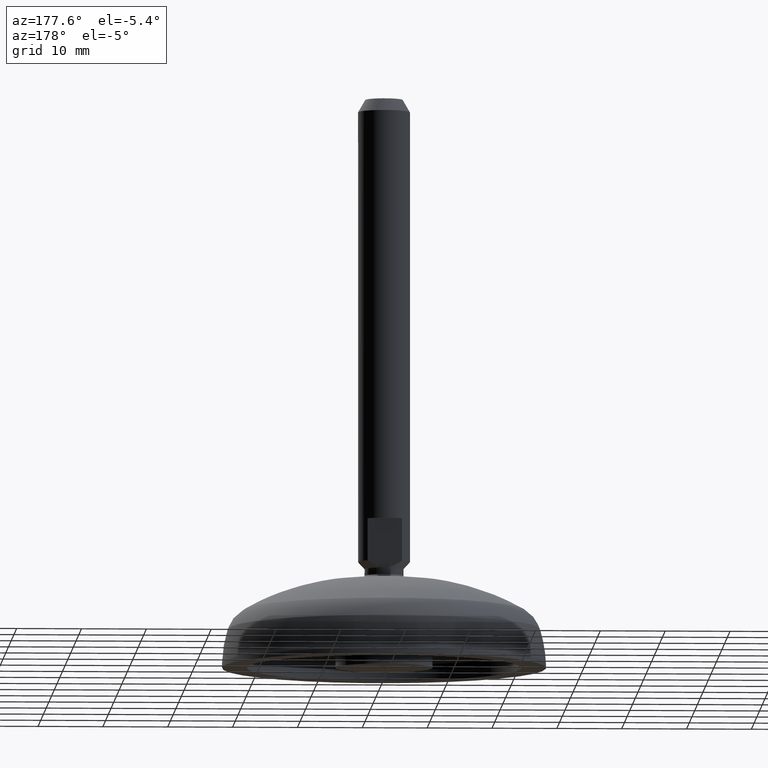
[diagram: clean part render]
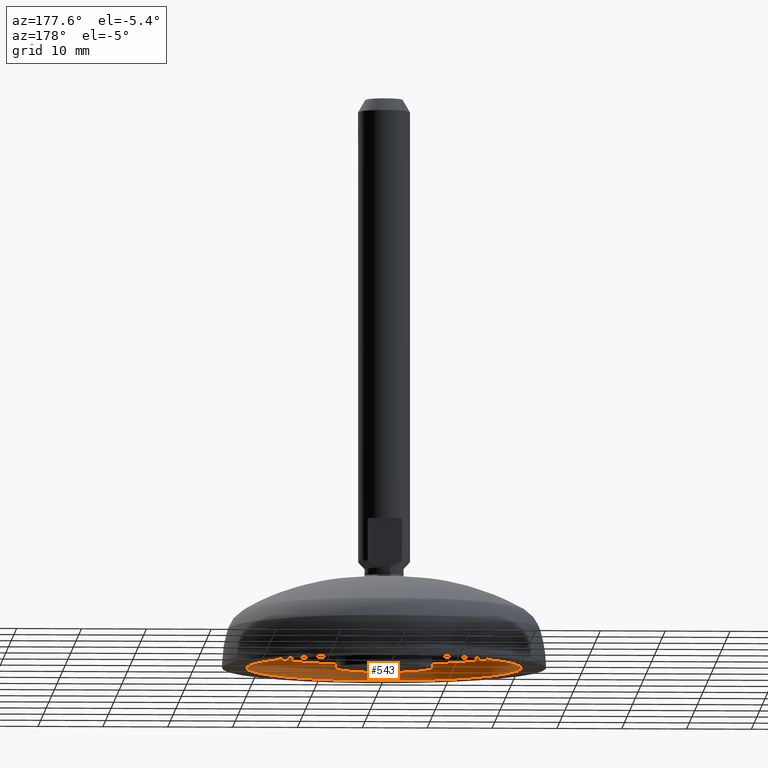
[diagram: same view with one face highlighted and labeled with its STEP entity id]
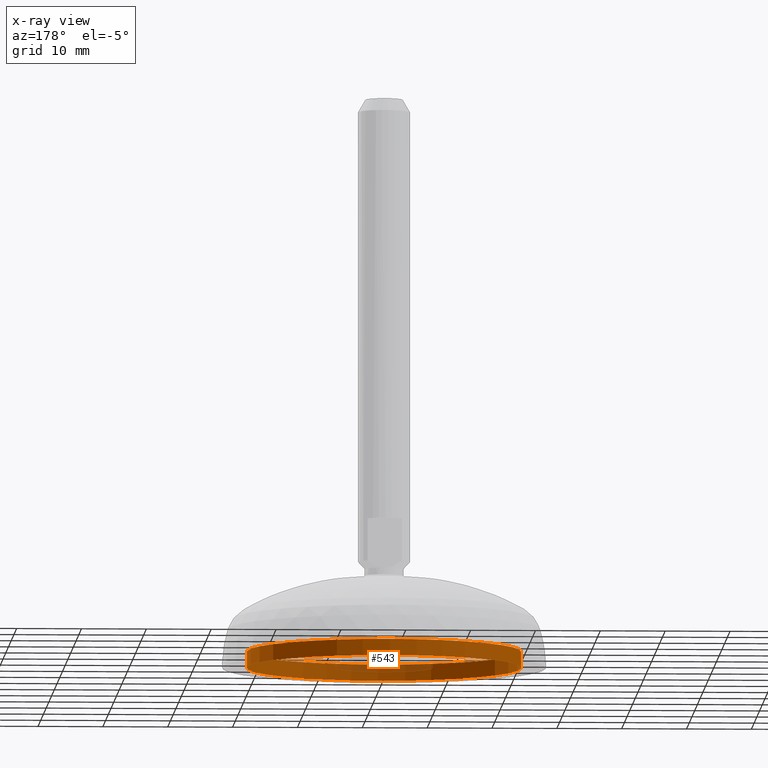
[diagram: x-ray of the same camera — body ghosted, the highlighted face saturated]
A machine part, auxiliary view. The second image highlights one B-rep face of the part: STEP entity #543.
The next image is the same camera in x-ray: the body ghosted, the highlighted face saturated — about 8% of this face is hidden behind the body in this view.
In plain terms, the highlighted cylindrical surface (bore or boss wall) has radius 21.1501 mm, axis along (0, 0, -1).
Its self-contained STEP definition (entity closure, byte-faithful):
#488=CARTESIAN_POINT('',(21.150118880478285,1.289336E-014,-1.137512E-012));
#489=VERTEX_POINT('',#488);
#490=CARTESIAN_POINT('',(-21.150118880478278,1.116660E-014,-1.137445E-012));
#491=VERTEX_POINT('',#490);
#492=CARTESIAN_POINT('',(-1.468147E-025,1.289336E-014,-1.137512E-012));
#493=DIRECTION('',(0.0,0.0,-1.0));
#494=DIRECTION('',(-1.0,0.0,0.0));
#495=AXIS2_PLACEMENT_3D('',#492,#493,#494);
#496=CIRCLE('',#495,21.150118880478285);
#497=EDGE_CURVE('',#489,#491,#496,.T.);
#499=CARTESIAN_POINT('',(-1.468147E-025,1.289336E-014,-1.137512E-012));
#500=DIRECTION('',(0.0,0.0,-1.0));
#501=DIRECTION('',(-1.0,0.0,0.0));
#502=AXIS2_PLACEMENT_3D('',#499,#500,#501);
#503=CIRCLE('',#502,21.150118880478285);
#504=EDGE_CURVE('',#491,#489,#503,.T.);
#509=CARTESIAN_POINT('',(0.0,1.289336E-014,2.498769809998853));
#510=DIRECTION('',(0.0,0.0,-1.0));
#511=DIRECTION('',(-1.0,0.0,0.0));
#512=AXIS2_PLACEMENT_3D('',#509,#510,#511);
#513=CYLINDRICAL_SURFACE('',#512,21.150118880478264);
#514=ORIENTED_EDGE('',*,*,#504,.T.);
#515=ORIENTED_EDGE('',*,*,#497,.T.);
#516=CARTESIAN_POINT('',(-21.150118880478018,1.116660E-014,2.498769799998853));
#517=VERTEX_POINT('',#516);
#518=CARTESIAN_POINT('',(-21.150118880478264,7.713075E-015,-1.137312E-012));
#519=DIRECTION('',(0.0,0.0,1.0));
#520=VECTOR('',#519,2.498769799999991);
#521=LINE('',#518,#520);
#522=EDGE_CURVE('',#491,#517,#521,.T.);
#523=ORIENTED_EDGE('',*,*,#522,.T.);
#524=CARTESIAN_POINT('',(21.150118880478541,1.289336E-014,2.498769799998853));
#525=VERTEX_POINT('',#524);
#526=CARTESIAN_POINT('',(3.225075E-013,1.289336E-014,2.498769799998853));
#527=DIRECTION('',(0.0,0.0,-1.0));
#528=DIRECTION('',(-1.0,0.0,0.0));
#529=AXIS2_PLACEMENT_3D('',#526,#527,#528);
#530=CIRCLE('',#529,21.150118880478217);
#531=EDGE_CURVE('',#525,#517,#530,.T.);
#532=ORIENTED_EDGE('',*,*,#531,.F.);
#533=CARTESIAN_POINT('',(3.225075E-013,1.289336E-014,2.498769799998853));
#534=DIRECTION('',(0.0,0.0,-1.0));
#535=DIRECTION('',(-1.0,0.0,0.0));
#536=AXIS2_PLACEMENT_3D('',#533,#534,#535);
#537=CIRCLE('',#536,21.150118880478217);
#538=EDGE_CURVE('',#517,#525,#537,.T.);
#539=ORIENTED_EDGE('',*,*,#538,.F.);
#540=ORIENTED_EDGE('',*,*,#522,.F.);
#541=EDGE_LOOP('',(#514,#515,#523,#532,#539,#540));
#542=FACE_OUTER_BOUND('',#541,.T.);
#543=ADVANCED_FACE('',(#542),#513,.F.);